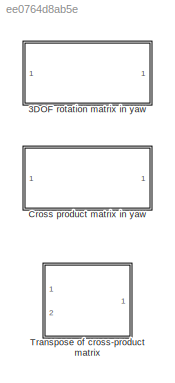
MODEL slx_ee0764d8ab5e
KIND model
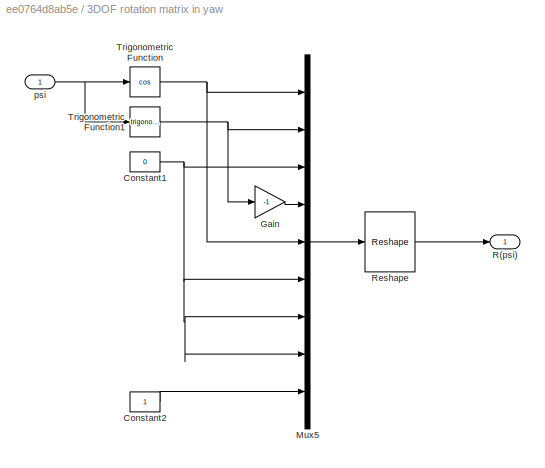
BLOCK [SubSystem] 3DOF rotation matrix in yaw
  FunctionWithSeparateData = off
  MaskHideContents = off
  MinAlgLoopOccurrences = off
  Opaque = off
  Ports = [1, 1]
  PropExecContextOutsideSubsystem = off
  RTWSystemCode = Auto
  RequestExecContextInheritance = off
BLOCK [Constant] 3DOF rotation matrix in yaw/Constant1
  Value = 0
BLOCK [Constant] 3DOF rotation matrix in yaw/Constant2
BLOCK [Gain] 3DOF rotation matrix in yaw/Gain
  Gain = -1
  OutDataTypeStr = Inherit: Inherit via internal rule
  ParamDataTypeStr = Inherit: Inherit via internal rule
  SaturateOnIntegerOverflow = off
BLOCK [Mux] 3DOF rotation matrix in yaw/Mux5
  DisplayOption = bar
  Inputs = 9
  Ports = [9, 1]
BLOCK [Outport] 3DOF rotation matrix in yaw/R(psi)
  IconDisplay = Port number
BLOCK [Reshape] 3DOF rotation matrix in yaw/Reshape
  OutputDimensionality = Customize
  OutputDimensions = [3,3]
  Ports = [1, 1]
BLOCK [Trigonometry] 3DOF rotation matrix in yaw/Trigonometric Function
  Operator = cos
  Ports = [1, 1]
BLOCK [Trigonometry] 3DOF rotation matrix in yaw/Trigonometric Function1
  Ports = [1, 1]
BLOCK [Inport] 3DOF rotation matrix in yaw/psi
  IconDisplay = Port number
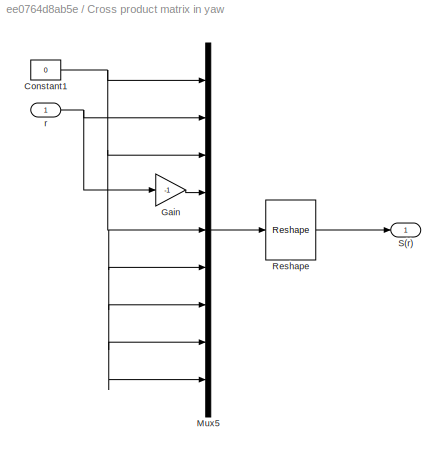
BLOCK [SubSystem] Cross product matrix in yaw
  FunctionWithSeparateData = off
  MaskHideContents = off
  MinAlgLoopOccurrences = off
  Opaque = off
  Ports = [1, 1]
  PropExecContextOutsideSubsystem = off
  RTWSystemCode = Auto
  RequestExecContextInheritance = off
BLOCK [Constant] Cross product matrix in yaw/Constant1
  Value = 0
BLOCK [Gain] Cross product matrix in yaw/Gain
  Gain = -1
  OutDataTypeStr = Inherit: Inherit via internal rule
  ParamDataTypeStr = Inherit: Inherit via internal rule
  SaturateOnIntegerOverflow = off
BLOCK [Mux] Cross product matrix in yaw/Mux5
  DisplayOption = bar
  Inputs = 9
  Ports = [9, 1]
BLOCK [Reshape] Cross product matrix in yaw/Reshape
  OutputDimensionality = Customize
  OutputDimensions = [3,3]
  Ports = [1, 1]
BLOCK [Outport] Cross product matrix in yaw/S(r)
  IconDisplay = Port number
BLOCK [Inport] Cross product matrix in yaw/r
  IconDisplay = Port number
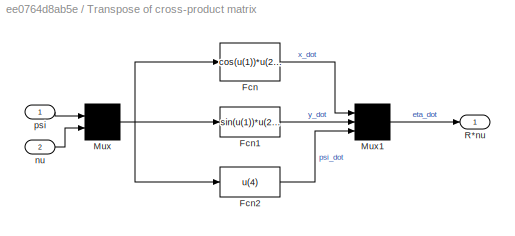
BLOCK [SubSystem] Transpose of cross-product matrix
  FunctionWithSeparateData = off
  MaskHideContents = off
  MinAlgLoopOccurrences = off
  Opaque = off
  Ports = [2, 1]
  PropExecContextOutsideSubsystem = off
  RTWSystemCode = Auto
  RequestExecContextInheritance = off
BLOCK [Fcn] Transpose of cross-product matrix/Fcn
  Expr = cos(u(1))*u(2)-sin(u(1))*u(3)
BLOCK [Fcn] Transpose of cross-product matrix/Fcn1
  Expr = sin(u(1))*u(2)+cos(u(1))*u(3)
BLOCK [Fcn] Transpose of cross-product matrix/Fcn2
  Expr = u(4)
BLOCK [Mux] Transpose of cross-product matrix/Mux
  Inputs = 2
  Ports = [2, 1]
BLOCK [Mux] Transpose of cross-product matrix/Mux1
  Inputs = 3
  Ports = [3, 1]
BLOCK [Outport] Transpose of cross-product matrix/R*nu
  IconDisplay = Port number
BLOCK [Inport] Transpose of cross-product matrix/nu
  IconDisplay = Port number
  Port = 2
BLOCK [Inport] Transpose of cross-product matrix/psi
  IconDisplay = Port number
NET 3DOF rotation matrix in yaw/Constant1:1 -> 3DOF rotation matrix in yaw/Mux5:3, 3DOF rotation matrix in yaw/Mux5:6, 3DOF rotation matrix in yaw/Mux5:7, 3DOF rotation matrix in yaw/Mux5:8
LINE 3DOF rotation matrix in yaw/Constant2:1 -> 3DOF rotation matrix in yaw/Mux5:9
LINE 3DOF rotation matrix in yaw/Gain:1 -> 3DOF rotation matrix in yaw/Mux5:4
LINE 3DOF rotation matrix in yaw/Mux5:1 -> 3DOF rotation matrix in yaw/Reshape:1
LINE 3DOF rotation matrix in yaw/Reshape:1 -> 3DOF rotation matrix in yaw/R(psi):1
NET 3DOF rotation matrix in yaw/Trigonometric Function1:1 -> 3DOF rotation matrix in yaw/Gain:1, 3DOF rotation matrix in yaw/Mux5:2
NET 3DOF rotation matrix in yaw/Trigonometric Function:1 -> 3DOF rotation matrix in yaw/Mux5:1, 3DOF rotation matrix in yaw/Mux5:5
NET 3DOF rotation matrix in yaw/psi:1 -> 3DOF rotation matrix in yaw/Trigonometric Function1:1, 3DOF rotation matrix in yaw/Trigonometric Function:1
NET Cross product matrix in yaw/Constant1:1 -> Cross product matrix in yaw/Mux5:1, Cross product matrix in yaw/Mux5:3, Cross product matrix in yaw/Mux5:5, Cross product matrix in yaw/Mux5:6, Cross product matrix in yaw/Mux5:7, Cross product matrix in yaw/Mux5:8, Cross product matrix in yaw/Mux5:9
LINE Cross product matrix in yaw/Gain:1 -> Cross product matrix in yaw/Mux5:4
LINE Cross product matrix in yaw/Mux5:1 -> Cross product matrix in yaw/Reshape:1
LINE Cross product matrix in yaw/Reshape:1 -> Cross product matrix in yaw/S(r):1
NET Cross product matrix in yaw/r:1 -> Cross product matrix in yaw/Gain:1, Cross product matrix in yaw/Mux5:2
LINE Transpose of cross-product matrix/Fcn1:1 -> Transpose of cross-product matrix/Mux1:2
LINE Transpose of cross-product matrix/Fcn2:1 -> Transpose of cross-product matrix/Mux1:3
LINE Transpose of cross-product matrix/Fcn:1 -> Transpose of cross-product matrix/Mux1:1
LINE Transpose of cross-product matrix/Mux1:1 -> Transpose of cross-product matrix/R*nu:1
NET Transpose of cross-product matrix/Mux:1 -> Transpose of cross-product matrix/Fcn1:1, Transpose of cross-product matrix/Fcn2:1, Transpose of cross-product matrix/Fcn:1
LINE Transpose of cross-product matrix/nu:1 -> Transpose of cross-product matrix/Mux:2
LINE Transpose of cross-product matrix/psi:1 -> Transpose of cross-product matrix/Mux:1
note: NET lines group one-source signal fan-out (src -> all destinations, sorted); 1:1 wires keep LINE
